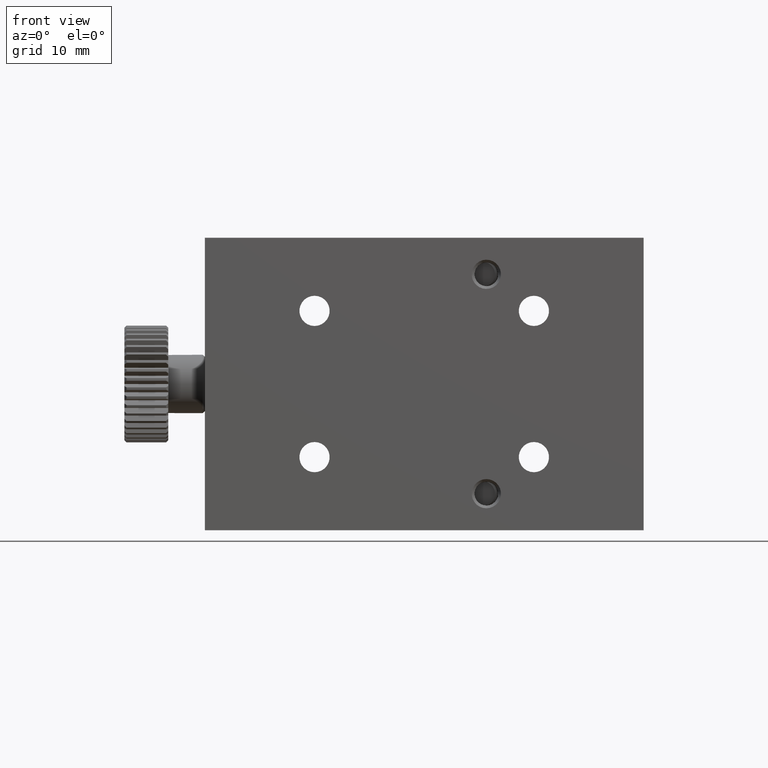
[diagram: clean part render]
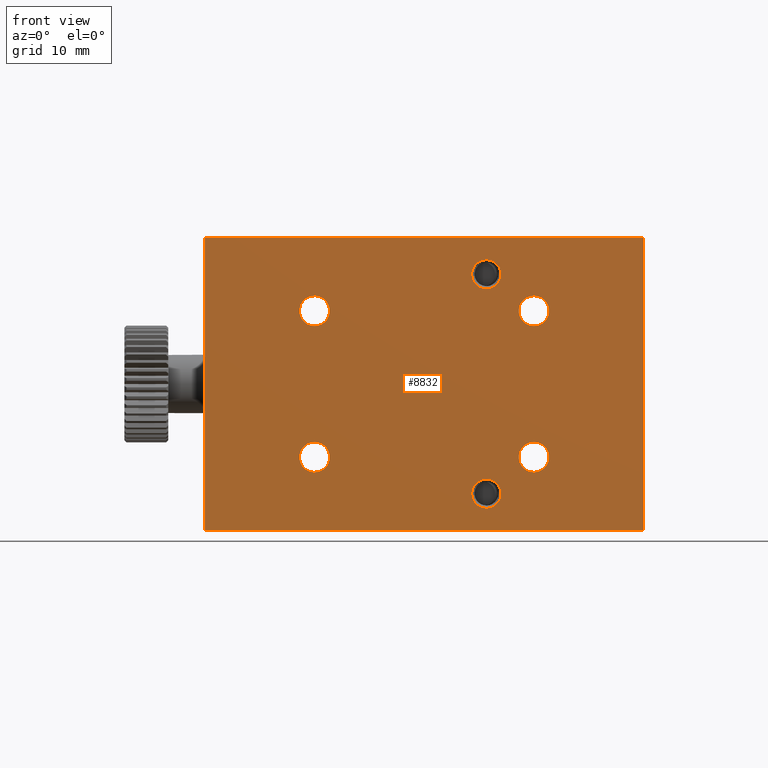
[diagram: same view with one face highlighted and labeled with its STEP entity id]
A machine part, front view. The second image highlights one B-rep face of the part: STEP entity #8832.
In plain terms, the highlighted planar face has unit normal (0, -1, 0).
Its self-contained STEP definition (entity closure, byte-faithful):
#58 = LINE ( 'NONE', #1134, #11042 ) ;
#107 = ORIENTED_EDGE ( 'NONE', *, *, #2107, .T. ) ;
#182 = LINE ( 'NONE', #7238, #11880 ) ;
#183 = CARTESIAN_POINT ( 'NONE',  ( 0.000000000000000000, 0.000000000000000000, -40.00000000000000000 ) ) ;
#407 = EDGE_CURVE ( 'NONE', #2774, #2774, #8469, .T. ) ;
#427 = EDGE_CURVE ( 'NONE', #9963, #9767, #182, .T. ) ;
#492 = EDGE_LOOP ( 'NONE', ( #9857, #9105, #4218, #8993 ) ) ;
#623 = VERTEX_POINT ( 'NONE', #2516 ) ;
#701 = CIRCLE ( 'NONE', #2631, 1.999999999948158802 ) ;
#827 = CARTESIAN_POINT ( 'NONE',  ( 45.00000000000000000, 0.000000000000000000, -12.06700000000000195 ) ) ;
#960 = CARTESIAN_POINT ( 'NONE',  ( 15.00000000000000000, 0.000000000000000000, -32.06700000000000017 ) ) ;
#987 = ORIENTED_EDGE ( 'NONE', *, *, #10798, .T. ) ;
#1014 = AXIS2_PLACEMENT_3D ( 'NONE', #2453, #3338, #2328 ) ;
#1108 = VERTEX_POINT ( 'NONE', #1223 ) ;
#1134 = CARTESIAN_POINT ( 'NONE',  ( 60.00000000000000000, 0.000000000000000000, -40.00000000000000000 ) ) ;
#1198 = DIRECTION ( 'NONE',  ( 0.000000000000000000, 0.000000000000000000, -1.000000000000000000 ) ) ;
#1223 = CARTESIAN_POINT ( 'NONE',  ( 0.000000000000000000, 0.000000000000000000, -40.00000000000000000 ) ) ;
#1247 = FACE_BOUND ( 'NONE', #10681, .T. ) ;
#1312 = FACE_BOUND ( 'NONE', #3242, .T. ) ;
#2015 = VERTEX_POINT ( 'NONE', #11686 ) ;
#2062 = FACE_OUTER_BOUND ( 'NONE', #492, .T. ) ;
#2107 = EDGE_CURVE ( 'NONE', #623, #623, #2504, .T. ) ;
#2328 = DIRECTION ( 'NONE',  ( 0.000000000000000000, 0.000000000000000000, -1.000000000000000000 ) ) ;
#2453 = CARTESIAN_POINT ( 'NONE',  ( 45.00000000000000000, 0.000000000000000000, -30.00000000000000000 ) ) ;
#2504 = CIRCLE ( 'NONE', #1014, 2.066999999999999282 ) ;
#2516 = CARTESIAN_POINT ( 'NONE',  ( 45.00000000000000000, 0.000000000000000000, -32.06700000000000017 ) ) ;
#2631 = AXIS2_PLACEMENT_3D ( 'NONE', #11833, #8813, #7757 ) ;
#2774 = VERTEX_POINT ( 'NONE', #4658 ) ;
#2827 = VECTOR ( 'NONE', #3468, 1000.000000000000000 ) ;
#3196 = DIRECTION ( 'NONE',  ( 0.000000000000000000, -0.000000000000000000, -1.000000000000000000 ) ) ;
#3242 = EDGE_LOOP ( 'NONE', ( #107 ) ) ;
#3268 = PLANE ( 'NONE',  #4979 ) ;
#3338 = DIRECTION ( 'NONE',  ( -0.000000000000000000, 1.000000000000000000, -0.000000000000000000 ) ) ;
#3468 = DIRECTION ( 'NONE',  ( 1.000000000000000000, 0.000000000000000000, 0.000000000000000000 ) ) ;
#3557 = DIRECTION ( 'NONE',  ( 0.000000000000000000, -0.000000000000000000, -1.000000000000000000 ) ) ;
#3617 = CARTESIAN_POINT ( 'NONE',  ( 0.000000000000000000, 0.000000000000000000, -40.00000000000000000 ) ) ;
#3714 = ORIENTED_EDGE ( 'NONE', *, *, #10432, .T. ) ;
#3823 = CARTESIAN_POINT ( 'NONE',  ( 15.00000000000000000, 0.000000000000000000, -30.00000000000000000 ) ) ;
#3946 = CIRCLE ( 'NONE', #9700, 2.066999999999999282 ) ;
#4050 = VERTEX_POINT ( 'NONE', #827 ) ;
#4119 = VERTEX_POINT ( 'NONE', #8199 ) ;
#4218 = ORIENTED_EDGE ( 'NONE', *, *, #427, .T. ) ;
#4572 = DIRECTION ( 'NONE',  ( -0.000000000000000000, 1.000000000000000000, -0.000000000000000000 ) ) ;
#4658 = CARTESIAN_POINT ( 'NONE',  ( 38.50000000000000000, 0.000000000000000000, -37.00000000009140422 ) ) ;
#4906 = EDGE_CURVE ( 'NONE', #9767, #1108, #8642, .T. ) ;
#4979 = AXIS2_PLACEMENT_3D ( 'NONE', #9419, #6216, #3196 ) ;
#5066 = CARTESIAN_POINT ( 'NONE',  ( 15.00000000000000000, 0.000000000000000000, -10.00000000000000000 ) ) ;
#5156 = CARTESIAN_POINT ( 'NONE',  ( 45.00000000000000000, 0.000000000000000000, -10.00000000000000000 ) ) ;
#5345 = FACE_BOUND ( 'NONE', #11596, .T. ) ;
#5359 = CARTESIAN_POINT ( 'NONE',  ( 38.50000000000000000, 0.000000000000000000, -35.00000000000000000 ) ) ;
#5382 = EDGE_CURVE ( 'NONE', #4050, #4050, #6655, .T. ) ;
#5722 = CARTESIAN_POINT ( 'NONE',  ( 60.00000000000000000, 0.000000000000000000, 0.000000000000000000 ) ) ;
#5775 = DIRECTION ( 'NONE',  ( 0.000000000000000000, 0.000000000000000000, -1.000000000000000000 ) ) ;
#5862 = VERTEX_POINT ( 'NONE', #7075 ) ;
#6216 = DIRECTION ( 'NONE',  ( 0.000000000000000000, -1.000000000000000000, 0.000000000000000000 ) ) ;
#6231 = DIRECTION ( 'NONE',  ( -1.000000000000000000, -0.000000000000000000, -0.000000000000000000 ) ) ;
#6655 = CIRCLE ( 'NONE', #11760, 2.067000000000001059 ) ;
#6833 = EDGE_LOOP ( 'NONE', ( #3714 ) ) ;
#7075 = CARTESIAN_POINT ( 'NONE',  ( 38.50000000000000000, 5.684341886080801487E-11, -6.999999999948158802 ) ) ;
#7238 = CARTESIAN_POINT ( 'NONE',  ( 0.000000000000000000, 0.000000000000000000, 0.000000000000000000 ) ) ;
#7379 = CIRCLE ( 'NONE', #9073, 2.067000000000001059 ) ;
#7559 = LINE ( 'NONE', #183, #2827 ) ;
#7757 = DIRECTION ( 'NONE',  ( 0.000000000000000000, 0.000000000000000000, -1.000000000000000000 ) ) ;
#7929 = VERTEX_POINT ( 'NONE', #960 ) ;
#8158 = DIRECTION ( 'NONE',  ( 0.000000000000000000, 0.000000000000000000, -1.000000000000000000 ) ) ;
#8170 = DIRECTION ( 'NONE',  ( -0.000000000000000000, 0.000000000000000000, 1.000000000000000000 ) ) ;
#8199 = CARTESIAN_POINT ( 'NONE',  ( 15.00000000000000000, 0.000000000000000000, -12.06700000000000195 ) ) ;
#8458 = EDGE_CURVE ( 'NONE', #1108, #2015, #7559, .T. ) ;
#8469 = CIRCLE ( 'NONE', #8668, 2.000000000091400665 ) ;
#8642 = LINE ( 'NONE', #3617, #10040 ) ;
#8668 = AXIS2_PLACEMENT_3D ( 'NONE', #5359, #12249, #1198 ) ;
#8813 = DIRECTION ( 'NONE',  ( -0.000000000000000000, 1.000000000000000000, -0.000000000000000000 ) ) ;
#8832 = ADVANCED_FACE ( 'NONE', ( #2062, #12555, #1247, #12426, #12296, #1312, #5345 ), #3268, .T. ) ;
#8837 = EDGE_LOOP ( 'NONE', ( #987 ) ) ;
#8993 = ORIENTED_EDGE ( 'NONE', *, *, #4906, .T. ) ;
#9073 = AXIS2_PLACEMENT_3D ( 'NONE', #5066, #12220, #9138 ) ;
#9105 = ORIENTED_EDGE ( 'NONE', *, *, #12649, .T. ) ;
#9138 = DIRECTION ( 'NONE',  ( 0.000000000000000000, 0.000000000000000000, -1.000000000000000000 ) ) ;
#9419 = CARTESIAN_POINT ( 'NONE',  ( 0.000000000000000000, 0.000000000000000000, -40.00000000000000000 ) ) ;
#9551 = ORIENTED_EDGE ( 'NONE', *, *, #9785, .T. ) ;
#9700 = AXIS2_PLACEMENT_3D ( 'NONE', #3823, #4572, #5775 ) ;
#9719 = ORIENTED_EDGE ( 'NONE', *, *, #5382, .T. ) ;
#9767 = VERTEX_POINT ( 'NONE', #12697 ) ;
#9785 = EDGE_CURVE ( 'NONE', #5862, #5862, #701, .T. ) ;
#9857 = ORIENTED_EDGE ( 'NONE', *, *, #8458, .T. ) ;
#9963 = VERTEX_POINT ( 'NONE', #5722 ) ;
#10040 = VECTOR ( 'NONE', #3557, 1000.000000000000000 ) ;
#10432 = EDGE_CURVE ( 'NONE', #7929, #7929, #3946, .T. ) ;
#10566 = EDGE_LOOP ( 'NONE', ( #9551 ) ) ;
#10681 = EDGE_LOOP ( 'NONE', ( #12440 ) ) ;
#10798 = EDGE_CURVE ( 'NONE', #4119, #4119, #7379, .T. ) ;
#11042 = VECTOR ( 'NONE', #8170, 1000.000000000000000 ) ;
#11596 = EDGE_LOOP ( 'NONE', ( #9719 ) ) ;
#11686 = CARTESIAN_POINT ( 'NONE',  ( 60.00000000000000000, 0.000000000000000000, -40.00000000000000000 ) ) ;
#11760 = AXIS2_PLACEMENT_3D ( 'NONE', #5156, #12037, #8158 ) ;
#11833 = CARTESIAN_POINT ( 'NONE',  ( 38.50000000000000000, 5.684341886080801487E-11, -5.000000000000000000 ) ) ;
#11880 = VECTOR ( 'NONE', #6231, 1000.000000000000000 ) ;
#12037 = DIRECTION ( 'NONE',  ( -0.000000000000000000, 1.000000000000000000, -0.000000000000000000 ) ) ;
#12220 = DIRECTION ( 'NONE',  ( -0.000000000000000000, 1.000000000000000000, -0.000000000000000000 ) ) ;
#12249 = DIRECTION ( 'NONE',  ( -0.000000000000000000, 1.000000000000000000, -0.000000000000000000 ) ) ;
#12296 = FACE_BOUND ( 'NONE', #6833, .T. ) ;
#12426 = FACE_BOUND ( 'NONE', #8837, .T. ) ;
#12440 = ORIENTED_EDGE ( 'NONE', *, *, #407, .T. ) ;
#12555 = FACE_BOUND ( 'NONE', #10566, .T. ) ;
#12649 = EDGE_CURVE ( 'NONE', #2015, #9963, #58, .T. ) ;
#12697 = CARTESIAN_POINT ( 'NONE',  ( 0.000000000000000000, 0.000000000000000000, 0.000000000000000000 ) ) ;